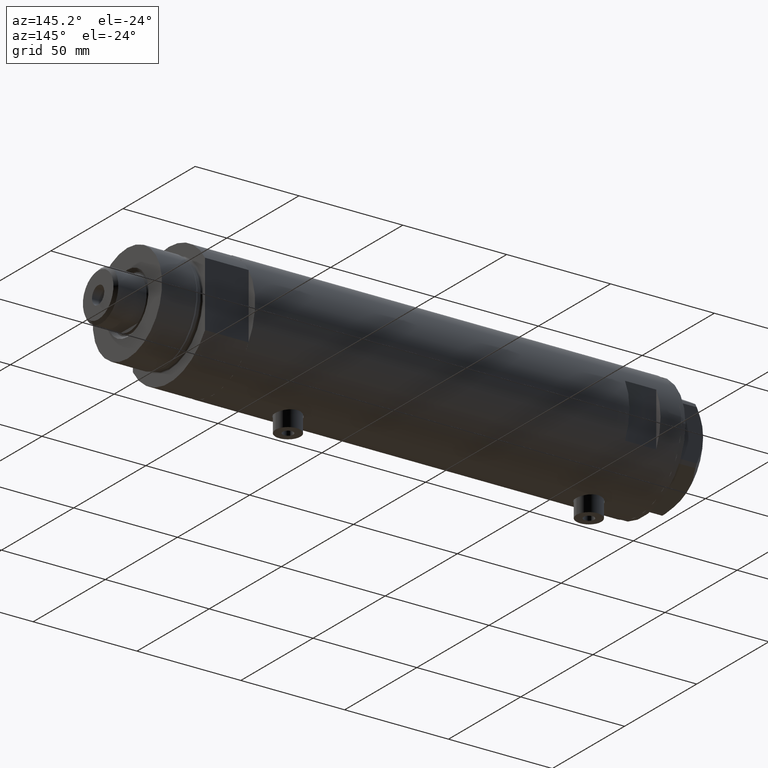
[diagram: clean part render]
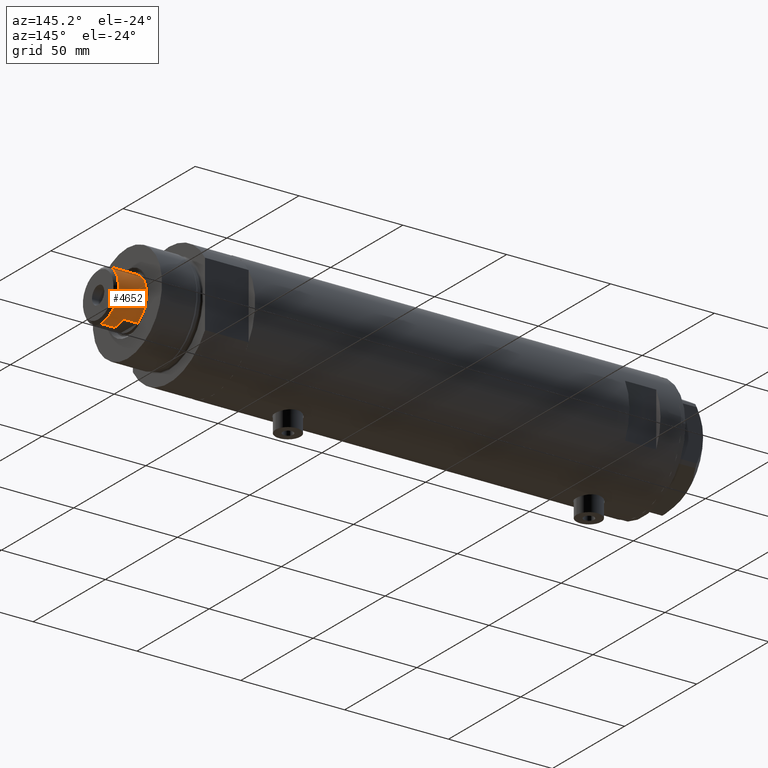
[diagram: same view with one face highlighted and labeled with its STEP entity id]
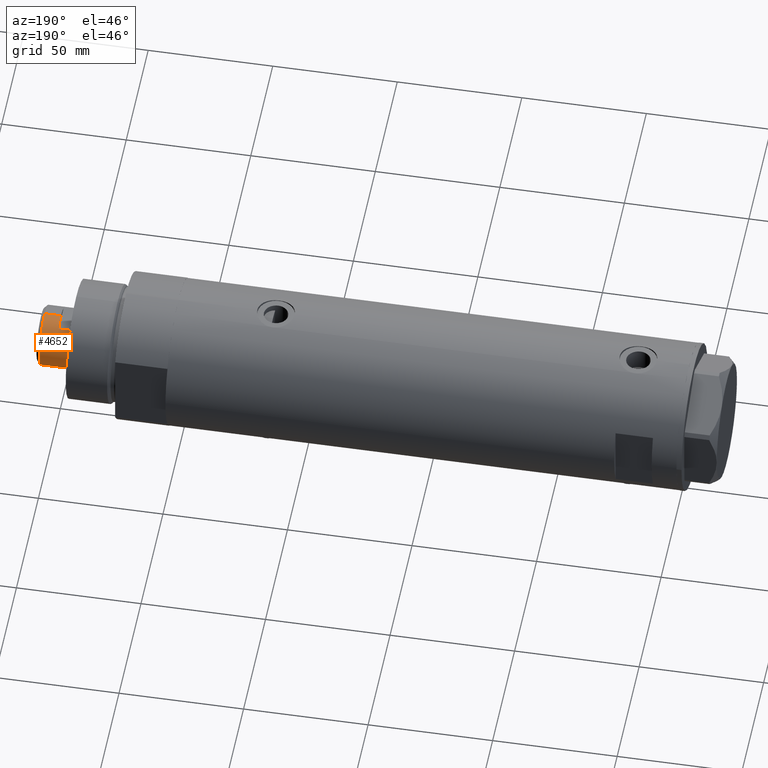
[diagram: same view with one face highlighted and labeled with its STEP entity id]
A machine part, auxiliary view. The second image highlights one B-rep face of the part: STEP entity #4652.
A second angle (auxiliary view) of the same face is appended — the face is thin or edge-on in the first view.
In plain terms, the highlighted cylindrical surface (edge-blend (fillet) strip) has radius 12 mm, axis along (-1, -0, 0).
Its self-contained STEP definition (entity closure, byte-faithful):
#76 = LINE ( 'NONE', #2601, #514 ) ;
#113 = VECTOR ( 'NONE', #1884, 1000.000000000000000 ) ;
#166 = CARTESIAN_POINT ( 'NONE',  ( 0.000000000000000000, 0.000000000000000000, 235.4000000000000057 ) ) ;
#203 = EDGE_CURVE ( 'NONE', #3957, #4249, #3836, .T. ) ;
#206 = CIRCLE ( 'NONE', #4164, 12.00000000000000178 ) ;
#231 = VERTEX_POINT ( 'NONE', #4162 ) ;
#514 = VECTOR ( 'NONE', #1463, 1000.000000000000000 ) ;
#529 = CARTESIAN_POINT ( 'NONE',  ( -12.00000000000000000, 0.000000000000000000, 228.8000000000000114 ) ) ;
#651 = AXIS2_PLACEMENT_3D ( 'NONE', #3798, #3869, #1250 ) ;
#781 = EDGE_CURVE ( 'NONE', #1528, #3957, #3728, .T. ) ;
#872 = DIRECTION ( 'NONE',  ( 1.000000000000000000, 0.000000000000000000, 0.000000000000000000 ) ) ;
#899 = CARTESIAN_POINT ( 'NONE',  ( 10.48861764008966269, 5.830000000000000071, 228.8000000000000114 ) ) ;
#957 = VERTEX_POINT ( 'NONE', #1611 ) ;
#1067 = CARTESIAN_POINT ( 'NONE',  ( 0.000000000000000000, 0.000000000000000000, 228.8000000000000114 ) ) ;
#1137 = ORIENTED_EDGE ( 'NONE', *, *, #4261, .T. ) ;
#1250 = DIRECTION ( 'NONE',  ( 1.000000000000000000, 0.000000000000000000, 0.000000000000000000 ) ) ;
#1316 = CARTESIAN_POINT ( 'NONE',  ( 12.00000000000000000, 1.469576158976823947E-15, 235.4000000000000057 ) ) ;
#1459 = DIRECTION ( 'NONE',  ( -1.000000000000000000, 0.000000000000000000, 0.000000000000000000 ) ) ;
#1463 = DIRECTION ( 'NONE',  ( -0.000000000000000000, -0.000000000000000000, -1.000000000000000000 ) ) ;
#1527 = CIRCLE ( 'NONE', #4230, 12.00000000000000178 ) ;
#1528 = VERTEX_POINT ( 'NONE', #899 ) ;
#1574 = EDGE_CURVE ( 'NONE', #957, #1655, #2067, .T. ) ;
#1611 = CARTESIAN_POINT ( 'NONE',  ( -12.00000000000000000, 0.000000000000000000, 235.4000000000000057 ) ) ;
#1655 = VERTEX_POINT ( 'NONE', #1316 ) ;
#1717 = VERTEX_POINT ( 'NONE', #2892 ) ;
#1739 = DIRECTION ( 'NONE',  ( 1.000000000000000000, 0.000000000000000000, 0.000000000000000000 ) ) ;
#1770 = FACE_OUTER_BOUND ( 'NONE', #2498, .T. ) ;
#1837 = CARTESIAN_POINT ( 'NONE',  ( 10.48861764008966269, 5.830000000000000071, 228.8000000000000114 ) ) ;
#1884 = DIRECTION ( 'NONE',  ( -0.000000000000000000, -0.000000000000000000, -1.000000000000000000 ) ) ;
#1893 = LINE ( 'NONE', #3344, #2934 ) ;
#2018 = ORIENTED_EDGE ( 'NONE', *, *, #203, .T. ) ;
#2067 = CIRCLE ( 'NONE', #2770, 12.00000000000000000 ) ;
#2215 = CARTESIAN_POINT ( 'NONE',  ( 0.000000000000000000, 0.000000000000000000, 228.8000000000000114 ) ) ;
#2498 = EDGE_LOOP ( 'NONE', ( #3948, #3508, #4650, #4538, #2018, #4626, #1137, #4522 ) ) ;
#2577 = CYLINDRICAL_SURFACE ( 'NONE', #3779, 12.00000000000000000 ) ;
#2601 = CARTESIAN_POINT ( 'NONE',  ( 12.00000000000000000, 1.469576158976823947E-15, 228.8000000000000114 ) ) ;
#2770 = AXIS2_PLACEMENT_3D ( 'NONE', #166, #4566, #872 ) ;
#2892 = CARTESIAN_POINT ( 'NONE',  ( -12.00000000000000355, 0.000000000000000000, 228.8000000000000114 ) ) ;
#2894 = CARTESIAN_POINT ( 'NONE',  ( -10.48861764008966269, 5.829999999999999183, 228.8000000000000114 ) ) ;
#2934 = VECTOR ( 'NONE', #3665, 1000.000000000000000 ) ;
#3202 = EDGE_CURVE ( 'NONE', #957, #1717, #4171, .T. ) ;
#3276 = DIRECTION ( 'NONE',  ( -0.000000000000000000, -0.000000000000000000, -1.000000000000000000 ) ) ;
#3279 = CARTESIAN_POINT ( 'NONE',  ( 10.48861764008966269, 5.830000000000000071, 221.8000000000000114 ) ) ;
#3326 = DIRECTION ( 'NONE',  ( 1.000000000000000000, 0.000000000000000000, 0.000000000000000000 ) ) ;
#3344 = CARTESIAN_POINT ( 'NONE',  ( -10.48861764008966269, 5.829999999999999183, 228.8000000000000114 ) ) ;
#3436 = DIRECTION ( 'NONE',  ( -0.000000000000000000, -0.000000000000000000, -1.000000000000000000 ) ) ;
#3508 = ORIENTED_EDGE ( 'NONE', *, *, #4007, .T. ) ;
#3665 = DIRECTION ( 'NONE',  ( -0.000000000000000000, -0.000000000000000000, -1.000000000000000000 ) ) ;
#3728 = LINE ( 'NONE', #1837, #113 ) ;
#3779 = AXIS2_PLACEMENT_3D ( 'NONE', #2215, #3276, #1459 ) ;
#3798 = CARTESIAN_POINT ( 'NONE',  ( 0.000000000000000000, 0.000000000000000000, 221.8000000000000114 ) ) ;
#3836 = CIRCLE ( 'NONE', #651, 12.00000000000001066 ) ;
#3849 = VECTOR ( 'NONE', #3436, 1000.000000000000000 ) ;
#3869 = DIRECTION ( 'NONE',  ( 0.000000000000000000, 0.000000000000000000, 1.000000000000000000 ) ) ;
#3880 = CARTESIAN_POINT ( 'NONE',  ( 0.000000000000000000, 0.000000000000000000, 228.8000000000000114 ) ) ;
#3948 = ORIENTED_EDGE ( 'NONE', *, *, #1574, .T. ) ;
#3957 = VERTEX_POINT ( 'NONE', #3279 ) ;
#4007 = EDGE_CURVE ( 'NONE', #1655, #231, #76, .T. ) ;
#4029 = DIRECTION ( 'NONE',  ( 0.000000000000000000, 0.000000000000000000, 1.000000000000000000 ) ) ;
#4162 = CARTESIAN_POINT ( 'NONE',  ( 12.00000000000000355, 1.469576158976824342E-15, 228.8000000000000114 ) ) ;
#4164 = AXIS2_PLACEMENT_3D ( 'NONE', #1067, #4029, #3326 ) ;
#4171 = LINE ( 'NONE', #529, #3849 ) ;
#4188 = VERTEX_POINT ( 'NONE', #2894 ) ;
#4230 = AXIS2_PLACEMENT_3D ( 'NONE', #3880, #4668, #1739 ) ;
#4249 = VERTEX_POINT ( 'NONE', #4648 ) ;
#4261 = EDGE_CURVE ( 'NONE', #4188, #1717, #206, .T. ) ;
#4319 = EDGE_CURVE ( 'NONE', #4188, #4249, #1893, .T. ) ;
#4522 = ORIENTED_EDGE ( 'NONE', *, *, #3202, .F. ) ;
#4538 = ORIENTED_EDGE ( 'NONE', *, *, #781, .T. ) ;
#4566 = DIRECTION ( 'NONE',  ( 0.000000000000000000, 0.000000000000000000, -1.000000000000000000 ) ) ;
#4591 = EDGE_CURVE ( 'NONE', #231, #1528, #1527, .T. ) ;
#4626 = ORIENTED_EDGE ( 'NONE', *, *, #4319, .F. ) ;
#4648 = CARTESIAN_POINT ( 'NONE',  ( -10.48861764008966446, 5.830000000000016946, 221.8000000000000114 ) ) ;
#4650 = ORIENTED_EDGE ( 'NONE', *, *, #4591, .T. ) ;
#4652 = ADVANCED_FACE ( 'NONE', ( #1770 ), #2577, .T. ) ;
#4668 = DIRECTION ( 'NONE',  ( 0.000000000000000000, 0.000000000000000000, 1.000000000000000000 ) ) ;